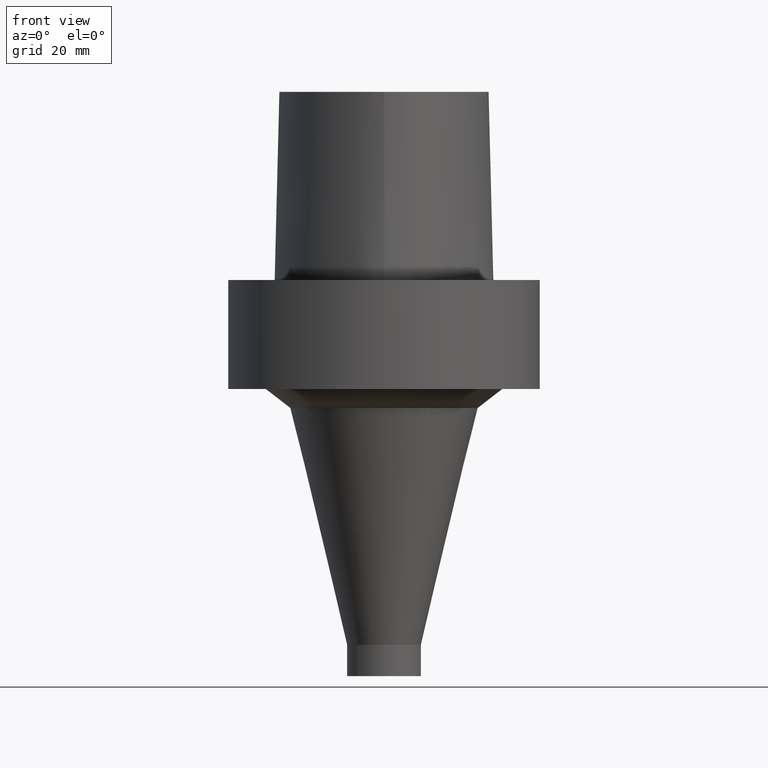
[diagram: clean part render]
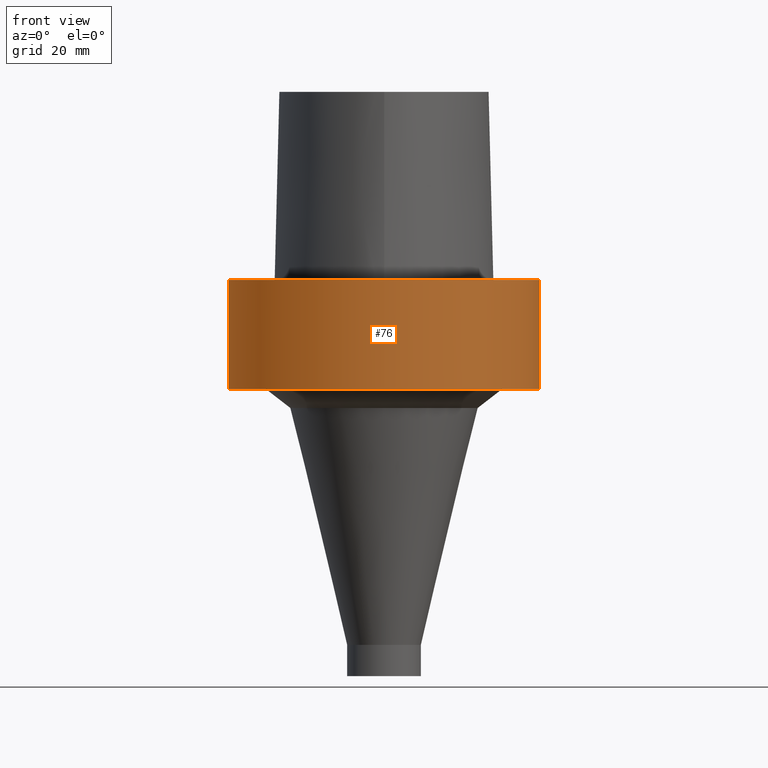
[diagram: same view with one face highlighted and labeled with its STEP entity id]
A machine part, front view. The second image highlights one B-rep face of the part: STEP entity #76.
In plain terms, the highlighted cylindrical surface (bore or boss wall) has radius 31.4925 mm, axis along (-0, -0, 1).
Its self-contained STEP definition (entity closure, byte-faithful):
#76=ADVANCED_FACE('',(#90,#91),#92,.T.);
#90=FACE_BOUND('',#118,.T.);
#91=FACE_BOUND('',#119,.T.);
#92=CYLINDRICAL_SURFACE('',#120,31.4925);
#118=EDGE_LOOP('',(#288));
#119=EDGE_LOOP('',(#289));
#120=AXIS2_PLACEMENT_3D('',#290,#291,#292);
#288=ORIENTED_EDGE('',*,*,#340,.F.);
#289=ORIENTED_EDGE('',*,*,#336,.T.);
#290=CARTESIAN_POINT('',(6.73555739531044E-016,1.34711147906209E-015,-11.0));
#291=DIRECTION('',(-6.12323399573677E-017,-1.22464679914735E-016,1.0));
#292=DIRECTION('',(-1.23259516440783E-032,1.0,1.22464679914735E-016));
#336=EDGE_CURVE('',#350,#350,#351,.T.);
#340=EDGE_CURVE('',#358,#358,#359,.T.);
#350=VERTEX_POINT('',#375);
#351=CIRCLE('',#376,31.4925);
#358=VERTEX_POINT('',#443);
#359=CIRCLE('',#444,31.4925);
#375=CARTESIAN_POINT('',(-3.88175032151136E-031,31.4925,3.8567189322148E-015));
#376=AXIS2_PLACEMENT_3D('',#493,#494,#495);
#443=CARTESIAN_POINT('',(1.34711147906209E-015,31.4925,-22.0));
#444=AXIS2_PLACEMENT_3D('',#499,#500,#501);
#493=CARTESIAN_POINT('',(0.0,0.0,0.0));
#494=DIRECTION('',(6.12323399573677E-017,1.22464679914735E-016,-1.0));
#495=DIRECTION('',(-1.23259516440783E-032,1.0,1.22464679914735E-016));
#499=CARTESIAN_POINT('',(1.34711147906209E-015,2.69422295812418E-015,-22.0));
#500=DIRECTION('',(6.12323399573677E-017,1.22464679914735E-016,-1.0));
#501=DIRECTION('',(-1.23259516440783E-032,1.0,1.22464679914735E-016));